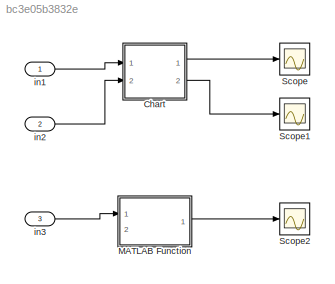
MODEL slx_bc3e05b3832e
KIND model
CONFIG AbsTol = auto
CONFIG EnableMultiTasking = off
CONFIG FixedStep = 1.0
CONFIG MaxStep = auto
CONFIG MinStep = auto
CONFIG RelTol = 1e-3
CONFIG SampleTimeConstraint = Unconstrained
CONFIG SolverName = FixedStepDiscrete
CONFIG StartTime = 0.0
CONFIG StopTime = 10.0
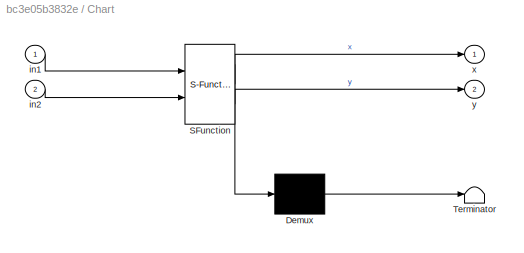
BLOCK [SubSystem] Chart
  ErrorFcn = Stateflow.Translate.translate
  PermitHierarchicalResolution = ExplicitOnly
  Ports = [2, 2]
  RequestExecContextInheritance = off
  SFBlockType = Chart
  TreatAsAtomicUnit = on
BLOCK [Demux] Chart/ Demux 
  Outputs = 1
  Ports = [1, 1]
BLOCK [S-Function] Chart/ SFunction 
  EnableBusSupport = on
  FunctionName = sf_sfun
  PortCounts = [2 3]
  Ports = [2, 3]
  SFcnIsStateOwnerBlock = off
  SFunctionDeploymentMode = off
  Tag = Stateflow S-Function 3
BLOCK [Terminator] Chart/ Terminator 
BLOCK [Inport] Chart/in1
BLOCK [Inport] Chart/in2
  Port = 2
BLOCK [Outport] Chart/x
BLOCK [Outport] Chart/y
  Port = 2
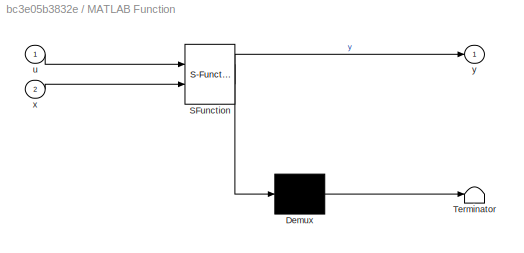
BLOCK [SubSystem] MATLAB Function
  ErrorFcn = Stateflow.Translate.translate
  PermitHierarchicalResolution = ExplicitOnly
  Ports = [2, 1]
  RequestExecContextInheritance = off
  SFBlockType = MATLAB Function
  TreatAsAtomicUnit = on
BLOCK [Demux] MATLAB Function/ Demux 
  Outputs = 1
  Ports = [1, 1]
BLOCK [S-Function] MATLAB Function/ SFunction 
  EnableBusSupport = off
  FunctionName = sf_sfun
  PortCounts = [2 2]
  Ports = [2, 2]
  SFcnIsStateOwnerBlock = off
  SFunctionDeploymentMode = off
  Tag = Stateflow S-Function 2
BLOCK [Terminator] MATLAB Function/ Terminator 
BLOCK [Inport] MATLAB Function/u
BLOCK [Inport] MATLAB Function/x
  Port = 2
BLOCK [Outport] MATLAB Function/y
BLOCK [Scope] Scope
  Floating = off
  NumInputPorts = 1
  Ports = [1]
  ScopeSpecificationString = Simulink.scopes.TimeScopeBlockCfg('CurrentConfiguration', extmgr.ConfigurationSet(extmgr.Configuration('Core','General UI',true),extmgr.Configuration('Core','Source UI',true),extmgr.Configuration('Sources','WiredSimulink',true),extmgr.Configuration('Visuals','Time Domain',true,'SerializedDisplays',{struct('MinYLimReal','-13.625','MaxYLimReal','122.625','YLabelReal','','MinYLimMag','0.00000','MaxYL...<+1393ch>
BLOCK [Scope] Scope1
  Floating = off
  NumInputPorts = 1
  Ports = [1]
  ScopeSpecificationString = Simulink.scopes.TimeScopeBlockCfg('CurrentConfiguration', extmgr.ConfigurationSet(extmgr.Configuration('Core','General UI',true),extmgr.Configuration('Core','Source UI',true),extmgr.Configuration('Sources','WiredSimulink',true,'DataLoggingVariableName','ScopeData1'),extmgr.Configuration('Visuals','Time Domain',true,'SerializedDisplays',{struct('MinYLimReal','-0.125','MaxYLimReal','1.125','YLabelRe...<+1354ch>
BLOCK [Scope] Scope2
  Floating = off
  NumInputPorts = 1
  Ports = [1]
  ScopeSpecificationString = Simulink.scopes.TimeScopeBlockCfg('CurrentConfiguration', extmgr.ConfigurationSet(extmgr.Configuration('Core','General UI',true),extmgr.Configuration('Core','Source UI',true),extmgr.Configuration('Sources','WiredSimulink',true,'DataLoggingVariableName','ScopeData2'),extmgr.Configuration('Visuals','Time Domain',true,'SerializedDisplays',{struct('MinYLimReal','-0.125','MaxYLimReal','1.125','YLabelRe...<+1354ch>
BLOCK [Inport] in1
  OutDataTypeStr = double
BLOCK [Inport] in2
  OutDataTypeStr = double
  Port = 2
BLOCK [Inport] in3
  OutDataTypeStr = double
  Port = 3
LINE Chart:1 -> Scope:1
LINE Chart:2 -> Scope1:1
LINE MATLAB Function:1 -> Scope2:1
LINE in1:1 -> Chart:1
LINE in2:1 -> Chart:2
LINE in3:1 -> MATLAB Function:1
CHART MATLAB Function states=1 transitions=1
  STATE_LABEL 'eML_blk_kernel()'
  STATE_LABEL 'SCRIPT:\nfunction y = fcn(u, x)\n\ny = u;\n'
CHART Chart states=9 transitions=14
  STATE_LABEL 'p1'
  STATE_LABEL 'a\nexit:x=10;'
  STATE_LABEL 'b'
  STATE_LABEL 'c\nentry:x=0;\n'
  STATE_LABEL 'c1'
  STATE_LABEL 'c2'
  STATE_LABEL '{e;}'
  STATE_LABEL '{x=in1;y=in2;}'
  STATE_LABEL 'e[x==10]{x=x+1;}'
  STATE_LABEL 'e[x==0]{x=0;e;}'
  STATE_LABEL '[x<100]{x=x+1;}'
  STATE_LABEL '[x<100]{x=x+10;}'
  STATE_LABEL '[y==0]{y=y+1;}'
  STATE_LABEL '[x==1]{y=y+10;x=x-1;}'
  STATE_LABEL '[y==1]{x=0;}'
  STATE_LABEL 'a\nexit:x=10;'
  STATE_LABEL 'b'
  STATE_LABEL 'c\nentry:x=0;\n'
  STATE_LABEL 'c1'
  STATE_LABEL 'c2'
  STATE_LABEL '{e;}'
  STATE_LABEL 'c1'
  STATE_LABEL 'c2'
  STATE_LABEL 'p2'
  STATE_LABEL 'a'
  STATE_LABEL 'b'
  STATE_LABEL '[x<100]{e;}'
  STATE_LABEL 'a'
  STATE_LABEL 'b'
CHART  states=0 transitions=0
CHART  states=0 transitions=0
